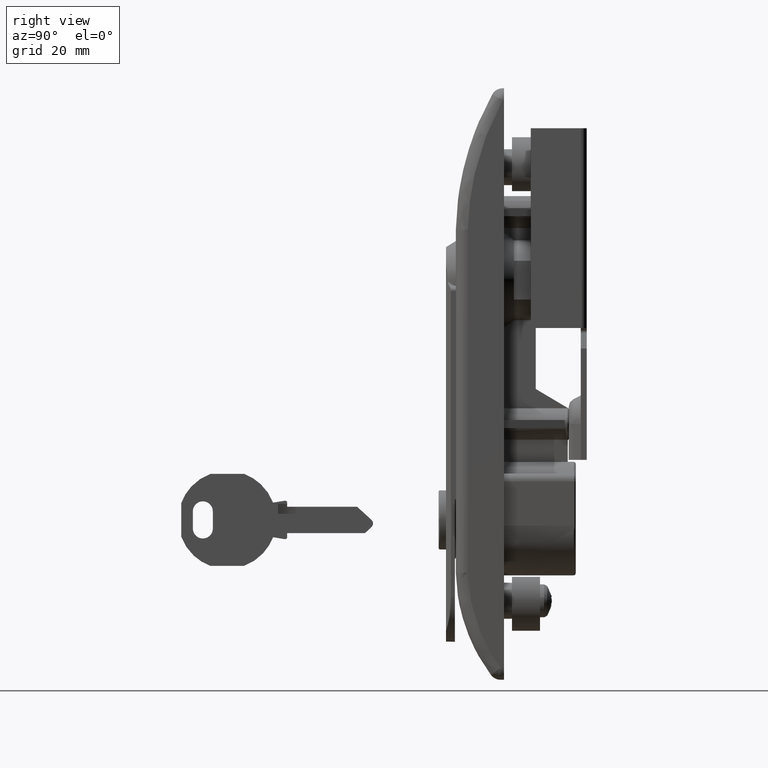
[diagram: clean part render]
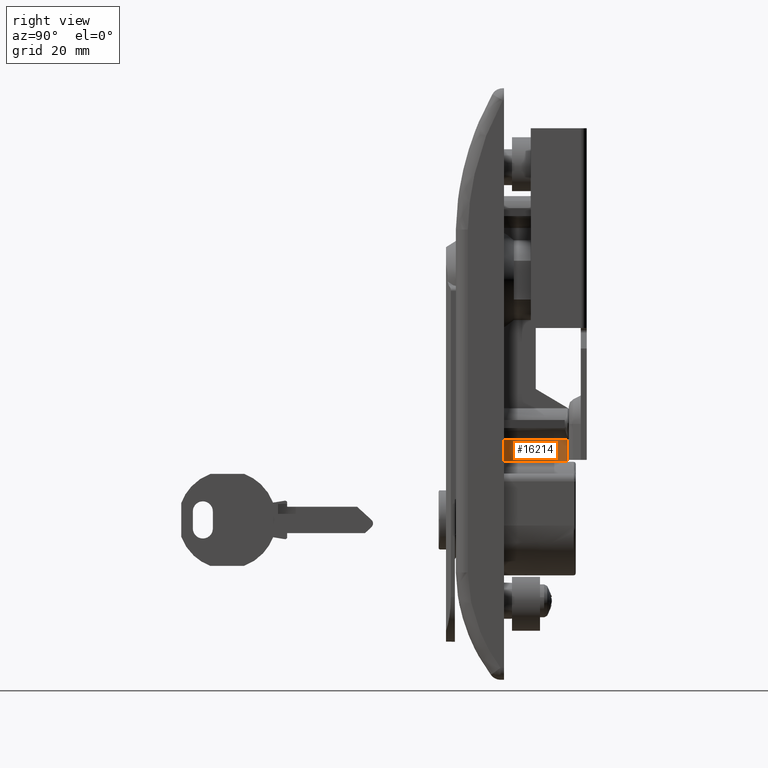
[diagram: same view with one face highlighted and labeled with its STEP entity id]
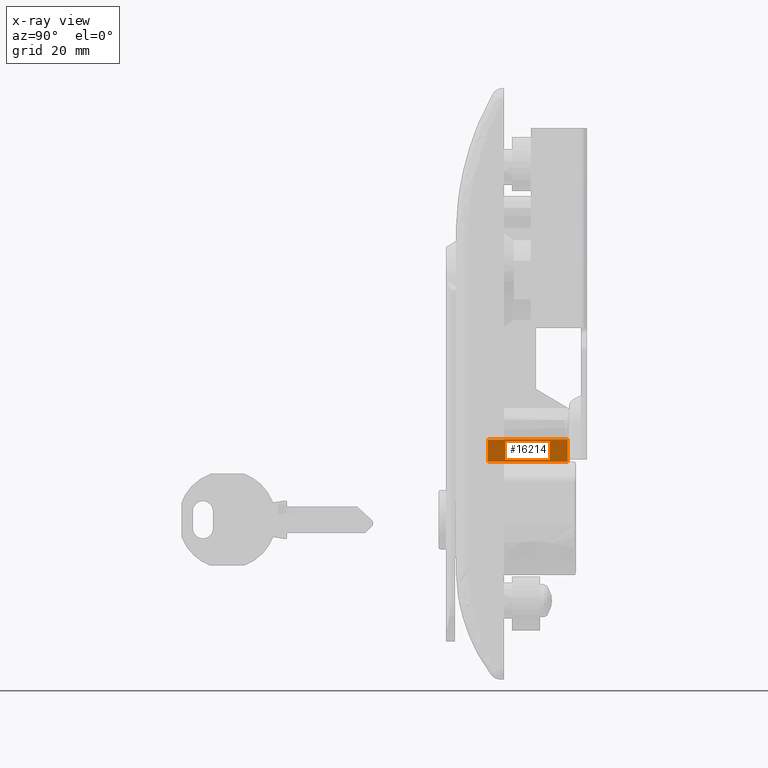
[diagram: x-ray of the same camera — body ghosted, the highlighted face saturated]
A machine part, right view. The second image highlights one B-rep face of the part: STEP entity #16214.
The next image is the same camera in x-ray: the body ghosted, the highlighted face saturated — about 0% of this face is hidden behind the body in this view.
In plain terms, the highlighted face is a freeform B-spline surface patch.
Its self-contained STEP definition (entity closure, byte-faithful):
#11330=CARTESIAN_POINT('',(0.750000000000000,15.900000000000000,-68.179058411372694));
#11331=VERTEX_POINT('',#11330);
#11347=CARTESIAN_POINT('',(0.750000000000000,15.949999999996701,-68.174786557219392));
#11348=VERTEX_POINT('',#11347);
#11349=CARTESIAN_POINT('',(0.750000000000000,15.949999999996701,-68.174786557219392));
#11350=CARTESIAN_POINT('',(0.750000000000000,15.933454934137950,-68.177633787611470));
#11351=CARTESIAN_POINT('',(0.750000000000000,15.916788324918301,-68.179058411372807));
#11352=CARTESIAN_POINT('',(0.750000000000000,15.900000000000000,-68.179058411372807));
#11353=QUASI_UNIFORM_CURVE('',3,(#11349,#11350,#11351,#11352),.UNSPECIFIED.,.F.,.U.);
#11354=EDGE_CURVE('',#11348,#11331,#11353,.T.);
#16180=CARTESIAN_POINT('',(0.750000000000000,-4.996502461332887,-73.999195409658782));
#16181=CARTESIAN_POINT('',(0.750000000000000,16.946502996430741,-73.999195409658782));
#16182=CARTESIAN_POINT('',(0.750000000000000,-4.996502461332887,-67.897701099488671));
#16183=CARTESIAN_POINT('',(0.750000000000000,16.946502996430741,-67.897701099488671));
#16184=B_SPLINE_SURFACE_WITH_KNOTS('',1,1,((#16180,#16182),(#16181,#16183)),.UNSPECIFIED.,.F.,.F.,.U.,(2,2),(2,2),(0.0,21.943005457763629),(0.0,6.101494310170111),.UNSPECIFIED.);
#16185=CARTESIAN_POINT('',(0.750000000000000,15.949999999997150,-73.722108662408004));
#16186=VERTEX_POINT('',#16185);
#16187=CARTESIAN_POINT('',(0.750000000000000,-4.0,-73.722108662408004));
#16188=VERTEX_POINT('',#16187);
#16189=CARTESIAN_POINT('',(0.750000000000000,15.949999999997150,-73.722108662408004));
#16190=CARTESIAN_POINT('',(0.750000000000000,-4.0,-73.722108662408004));
#16191=QUASI_UNIFORM_CURVE('',1,(#16189,#16190),.UNSPECIFIED.,.F.,.U.);
#16192=EDGE_CURVE('',#16186,#16188,#16191,.T.);
#16193=ORIENTED_EDGE('',*,*,#16192,.F.);
#16194=CARTESIAN_POINT('',(0.750000000000000,15.949999999996701,-68.174786557219392));
#16195=CARTESIAN_POINT('',(0.750000000000000,15.949999999997150,-73.722108662408004));
#16196=QUASI_UNIFORM_CURVE('',1,(#16194,#16195),.UNSPECIFIED.,.F.,.U.);
#16197=EDGE_CURVE('',#11348,#16186,#16196,.T.);
#16198=ORIENTED_EDGE('',*,*,#16197,.F.);
#16199=ORIENTED_EDGE('',*,*,#11354,.T.);
#16200=CARTESIAN_POINT('',(0.750000000000000,-4.0,-68.179058411372694));
#16201=VERTEX_POINT('',#16200);
#16202=CARTESIAN_POINT('',(0.750000000000000,-4.0,-68.179058411372694));
#16203=CARTESIAN_POINT('',(0.750000000000000,15.900000000000000,-68.179058411372694));
#16204=QUASI_UNIFORM_CURVE('',1,(#16202,#16203),.UNSPECIFIED.,.F.,.U.);
#16205=EDGE_CURVE('',#16201,#11331,#16204,.T.);
#16206=ORIENTED_EDGE('',*,*,#16205,.F.);
#16207=CARTESIAN_POINT('',(0.750000000000000,-4.0,-73.722108662408004));
#16208=CARTESIAN_POINT('',(0.750000000000000,-4.0,-68.179058411372694));
#16209=QUASI_UNIFORM_CURVE('',1,(#16207,#16208),.UNSPECIFIED.,.F.,.U.);
#16210=EDGE_CURVE('',#16188,#16201,#16209,.T.);
#16211=ORIENTED_EDGE('',*,*,#16210,.F.);
#16212=EDGE_LOOP('',(#16193,#16198,#16199,#16206,#16211));
#16213=FACE_OUTER_BOUND('',#16212,.T.);
#16214=ADVANCED_FACE('',(#16213),#16184,.T.);